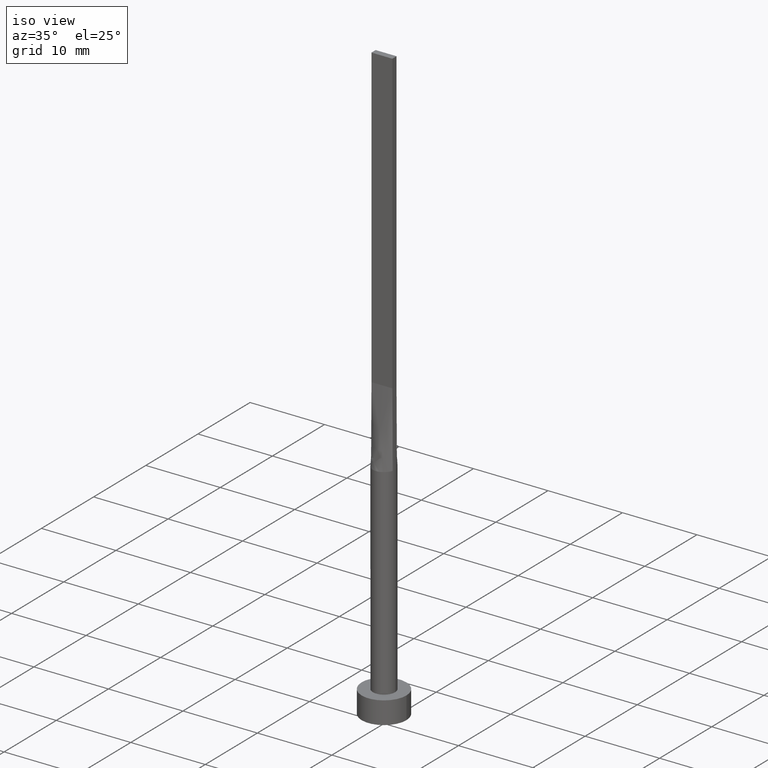
[diagram: clean part render]
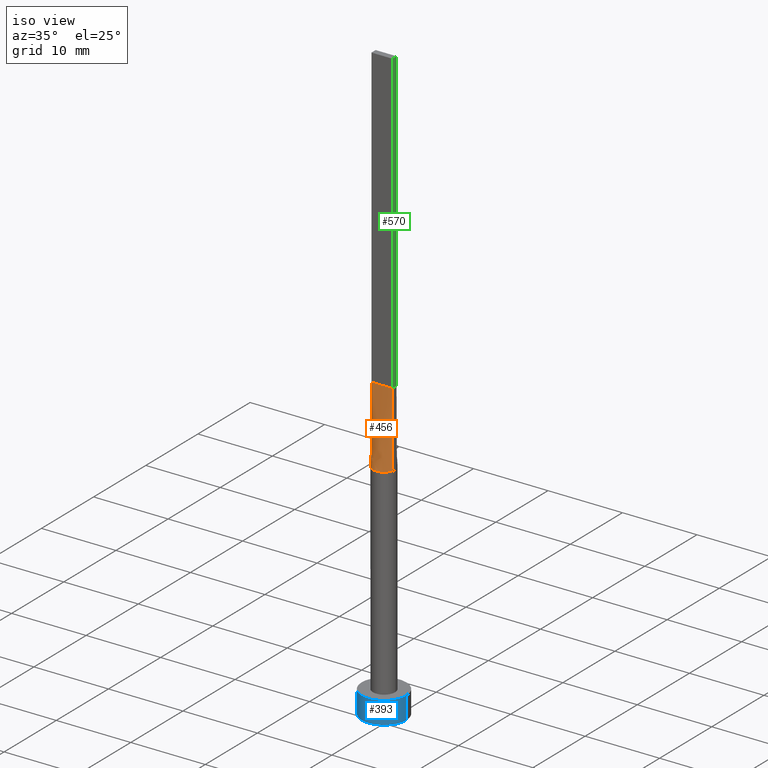
[diagram: same view with three faces highlighted in distinct colors, each labeled with its STEP entity id]
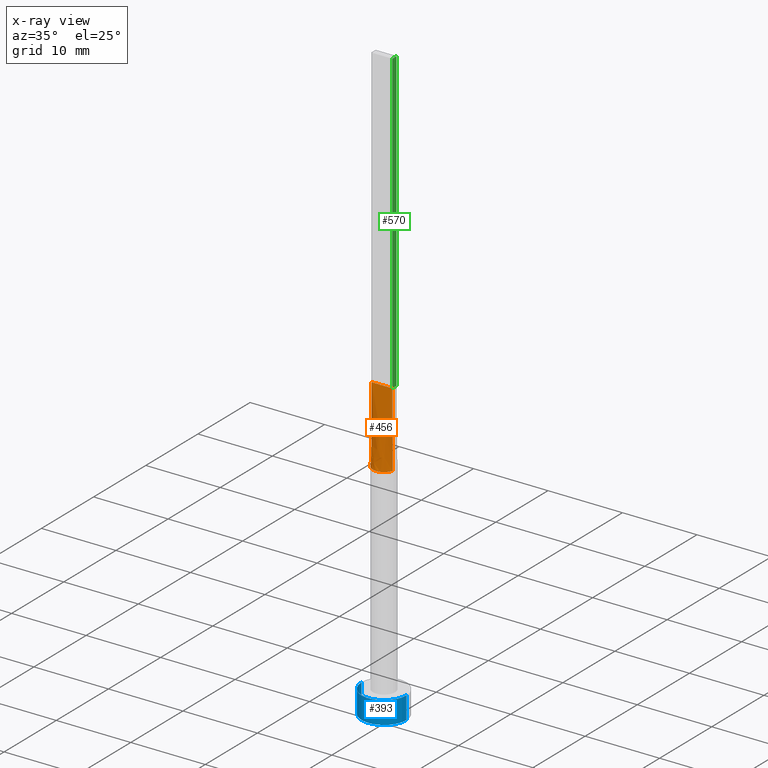
[diagram: x-ray of the same camera — body ghosted, the three highlighted faces saturated]
A machine part, iso view with three faces highlighted in distinct colors.
The next image is the same camera in x-ray (body ghosted, the three faces saturated) — at least one of them is partly hidden behind the body in this view.
Their STEP definitions:

[orange] entity #456 — the highlighted face is a freeform B-spline surface patch.
#5 = CARTESIAN_POINT ( 'NONE',  ( -1.409267053536706893, -0.5276477295819155255, 30.00000000000000000 ) ) ;
#9 = CARTESIAN_POINT ( 'NONE',  ( -1.283333333333333437, -0.3999999999999996336, 39.99999999999999289 ) ) ;
#16 = CARTESIAN_POINT ( 'NONE',  ( -1.442285921461235132, -0.4120816918460664113, 30.00000000000000000 ) ) ;
#28 = CARTESIAN_POINT ( 'NONE',  ( 1.409267053536706671, -0.5276477295819165247, 30.00000000000000000 ) ) ;
#45 = DIRECTION ( 'NONE',  ( 1.000000000000000000, -5.808225924029488744E-17, 0.000000000000000000 ) ) ;
#54 = CARTESIAN_POINT ( 'NONE',  ( 0.3767059690781844328, -1.463302066271691571, 30.00000000000000000 ) ) ;
#57 = CARTESIAN_POINT ( 'NONE',  ( 1.442393550978850802, -0.4121129214357137083, 30.00000000000000000 ) ) ;
#58 = CARTESIAN_POINT ( 'NONE',  ( -0.8665786268839192896, -1.235433898681764786, 30.00000000000000000 ) ) ;
#63 = B_SPLINE_SURFACE_WITH_KNOTS ( 'NONE', 3, 1, ( 
 ( #16, #372 ),
 ( #5, #9 ),
 ( #329, #279 ),
 ( #510, #91 ),
 ( #106, #360 ),
 ( #58, #541 ),
 ( #185, #146 ),
 ( #547, #143 ),
 ( #322, #501 ),
 ( #100, #460 ),
 ( #54, #504 ),
 ( #232, #189 ),
 ( #103, #464 ),
 ( #514, #336 ),
 ( #157, #154 ),
 ( #341, #381 ),
 ( #28, #69 ),
 ( #111, #333 ) ),
 .UNSPECIFIED., .F., .F., .F.,
 ( 4, 2, 2, 2, 2, 2, 2, 2, 4 ),
 ( 2, 2 ),
 ( 0.000000000000000000, 0.1250000000000000833, 0.2500000000000001665, 0.3750000000000001110, 0.5000000000000001110, 0.6250000000000001110, 0.7500000000000000000, 0.8750000000000000000, 1.000000000000000000 ),
 ( 0.000000000000000000, 1.000000000000000000 ),
 .UNSPECIFIED. ) ;
#69 = CARTESIAN_POINT ( 'NONE',  ( 1.283333333333332993, -0.3999999999999997446, 39.99999999999999289 ) ) ;
#71 = CARTESIAN_POINT ( 'NONE',  ( 1.399999999999999911, -0.3999999999999998002, 40.00000000000000000 ) ) ;
#75 = DIRECTION ( 'NONE',  ( 1.000000000000000000, 0.000000000000000000, 0.000000000000000000 ) ) ;
#91 = CARTESIAN_POINT ( 'NONE',  ( -0.9333333333333335702, -0.3999999999999996336, 39.99999999999999289 ) ) ;
#93 = AXIS2_PLACEMENT_3D ( 'NONE', #572, #479, #75 ) ;
#95 = CARTESIAN_POINT ( 'NONE',  ( -1.421142960730617633, -0.4060408459230329670, 35.00000000000000000 ) ) ;
#100 = CARTESIAN_POINT ( 'NONE',  ( 0.1885753531885892564, -1.499999999999999778, 30.00000000000000000 ) ) ;
#103 = CARTESIAN_POINT ( 'NONE',  ( 0.8665786268839185125, -1.235433898681766340, 30.00000000000001066 ) ) ;
#106 = CARTESIAN_POINT ( 'NONE',  ( -1.114527776139990323, -1.017390422009413209, 30.00000000000000000 ) ) ;
#111 = CARTESIAN_POINT ( 'NONE',  ( 1.442285921461234910, -0.4120816918460670220, 30.00000000000000000 ) ) ;
#122 = VECTOR ( 'NONE', #45, 1000.000000000000000 ) ;
#133 = ORIENTED_EDGE ( 'NONE', *, *, #561, .T. ) ;
#141 = EDGE_CURVE ( 'NONE', #285, #234, #256, .T. ) ;
#143 = CARTESIAN_POINT ( 'NONE',  ( -0.2333333333333344473, -0.3999999999999996336, 39.99999999999999289 ) ) ;
#146 = CARTESIAN_POINT ( 'NONE',  ( -0.4666666666666673957, -0.3999999999999996336, 39.99999999999999289 ) ) ;
#147 = VERTEX_POINT ( 'NONE', #478 ) ;
#151 = ORIENTED_EDGE ( 'NONE', *, *, #269, .T. ) ;
#154 = CARTESIAN_POINT ( 'NONE',  ( 0.9333333333333324600, -0.3999999999999997446, 39.99999999999999289 ) ) ;
#157 = CARTESIAN_POINT ( 'NONE',  ( 1.212111761082483197, -0.8950936653899579376, 30.00000000000000711 ) ) ;
#185 = CARTESIAN_POINT ( 'NONE',  ( -0.7158926189626813041, -1.330660769095146634, 29.99999999999999645 ) ) ;
#188 = CARTESIAN_POINT ( 'NONE',  ( -1.399999999999999911, -0.3999999999999996336, 40.00000000000000000 ) ) ;
#189 = CARTESIAN_POINT ( 'NONE',  ( 0.4666666666666655638, -0.3999999999999997446, 39.99999999999999289 ) ) ;
#232 = CARTESIAN_POINT ( 'NONE',  ( 0.7158926189626801939, -1.330660769095147744, 30.00000000000001066 ) ) ;
#234 = VERTEX_POINT ( 'NONE', #57 ) ;
#236 = LINE ( 'NONE', #188, #122 ) ;
#243 = LINE ( 'NONE', #477, #263 ) ;
#244 = VECTOR ( 'NONE', #371, 1000.000000000000000 ) ;
#256 = CIRCLE ( 'NONE', #93, 1.500000000000000222 ) ;
#263 = VECTOR ( 'NONE', #518, 1000.000000000000000 ) ;
#269 = EDGE_CURVE ( 'NONE', #147, #285, #535, .T. ) ;
#279 = CARTESIAN_POINT ( 'NONE',  ( -1.166666666666666741, -0.3999999999999996336, 39.99999999999999289 ) ) ;
#285 = VERTEX_POINT ( 'NONE', #402 ) ;
#291 = EDGE_CURVE ( 'NONE', #147, #369, #236, .T. ) ;
#322 = CARTESIAN_POINT ( 'NONE',  ( -0.1885753531885907275, -1.500000000000000000, 30.00000000000000000 ) ) ;
#329 = CARTESIAN_POINT ( 'NONE',  ( -1.359280768448767551, -0.6502025712814705205, 29.99999999999999289 ) ) ;
#333 = CARTESIAN_POINT ( 'NONE',  ( 1.399999999999999911, -0.3999999999999998002, 40.00000000000000000 ) ) ;
#336 = CARTESIAN_POINT ( 'NONE',  ( 0.8166666666666655416, -0.3999999999999997446, 39.99999999999999289 ) ) ;
#341 = CARTESIAN_POINT ( 'NONE',  ( 1.359280768448766663, -0.6502025712814719638, 30.00000000000001066 ) ) ;
#360 = CARTESIAN_POINT ( 'NONE',  ( -0.8166666666666668739, -0.3999999999999996336, 39.99999999999999289 ) ) ;
#369 = VERTEX_POINT ( 'NONE', #71 ) ;
#371 = DIRECTION ( 'NONE',  ( -0.004228551254826051417, -0.001208157501378827629, -0.9999903298081123104 ) ) ;
#372 = CARTESIAN_POINT ( 'NONE',  ( -1.399999999999999911, -0.3999999999999996336, 40.00000000000000000 ) ) ;
#381 = CARTESIAN_POINT ( 'NONE',  ( 1.166666666666666075, -0.3999999999999997446, 39.99999999999999289 ) ) ;
#402 = CARTESIAN_POINT ( 'NONE',  ( -1.442368678646663405, -0.4121057215347019853, 30.00000000000000000 ) ) ;
#452 = ORIENTED_EDGE ( 'NONE', *, *, #291, .F. ) ;
#456 = ADVANCED_FACE ( 'NONE', ( #469 ), #63, .T. ) ;
#460 = CARTESIAN_POINT ( 'NONE',  ( 0.1166666666666653640, -0.3999999999999996336, 39.99999999999999289 ) ) ;
#464 = CARTESIAN_POINT ( 'NONE',  ( 0.5833333333333321491, -0.3999999999999997446, 39.99999999999999289 ) ) ;
#469 = FACE_OUTER_BOUND ( 'NONE', #579, .T. ) ;
#477 = CARTESIAN_POINT ( 'NONE',  ( 1.421142960730617411, -0.4060408459230334111, 35.00000000000000000 ) ) ;
#478 = CARTESIAN_POINT ( 'NONE',  ( -1.399999999999999911, -0.3999999999999996336, 40.00000000000000000 ) ) ;
#479 = DIRECTION ( 'NONE',  ( 0.000000000000000000, 0.000000000000000000, 1.000000000000000000 ) ) ;
#488 = ORIENTED_EDGE ( 'NONE', *, *, #141, .T. ) ;
#501 = CARTESIAN_POINT ( 'NONE',  ( -0.1166666666666679592, -0.3999999999999996336, 39.99999999999999289 ) ) ;
#504 = CARTESIAN_POINT ( 'NONE',  ( 0.2333333333333321435, -0.3999999999999996891, 39.99999999999999289 ) ) ;
#510 = CARTESIAN_POINT ( 'NONE',  ( -1.212111761082483863, -0.8950936653899566053, 30.00000000000000355 ) ) ;
#514 = CARTESIAN_POINT ( 'NONE',  ( 1.114527776139989435, -1.017390422009414541, 30.00000000000001066 ) ) ;
#518 = DIRECTION ( 'NONE',  ( -0.004228551254826029733, 0.001208157501378870997, 0.9999903298081123104 ) ) ;
#535 = LINE ( 'NONE', #95, #244 ) ;
#541 = CARTESIAN_POINT ( 'NONE',  ( -0.5833333333333339255, -0.3999999999999996336, 39.99999999999999289 ) ) ;
#547 = CARTESIAN_POINT ( 'NONE',  ( -0.3767059690781856540, -1.463302066271690904, 30.00000000000000000 ) ) ;
#561 = EDGE_CURVE ( 'NONE', #234, #369, #243, .T. ) ;
#572 = CARTESIAN_POINT ( 'NONE',  ( 0.000000000000000000, 0.000000000000000000, 30.00000000000000000 ) ) ;
#579 = EDGE_LOOP ( 'NONE', ( #488, #133, #452, #151 ) ) ;

[blue] entity #393 — the highlighted cylindrical surface (edge-blend (fillet) strip) has radius 3 mm, axis along (-0, -0, -1).
#13 = CYLINDRICAL_SURFACE ( 'NONE', #414, 3.000000000000000444 ) ;
#23 = EDGE_CURVE ( 'NONE', #55, #326, #445, .T. ) ;
#39 = CARTESIAN_POINT ( 'NONE',  ( 3.000000000000000444, 3.673940397442060361E-16, 3.000000000000000000 ) ) ;
#41 = EDGE_CURVE ( 'NONE', #47, #55, #264, .T. ) ;
#47 = VERTEX_POINT ( 'NONE', #569 ) ;
#51 = DIRECTION ( 'NONE',  ( -0.000000000000000000, -0.000000000000000000, -1.000000000000000000 ) ) ;
#52 = EDGE_LOOP ( 'NONE', ( #273, #352, #548, #313 ) ) ;
#55 = VERTEX_POINT ( 'NONE', #248 ) ;
#84 = AXIS2_PLACEMENT_3D ( 'NONE', #305, #348, #475 ) ;
#136 = CARTESIAN_POINT ( 'NONE',  ( 0.000000000000000000, 0.000000000000000000, 3.000000000000000000 ) ) ;
#152 = CIRCLE ( 'NONE', #339, 3.000000000000000444 ) ;
#227 = CARTESIAN_POINT ( 'NONE',  ( 3.000000000000000444, 3.673940397442060361E-16, 0.000000000000000000 ) ) ;
#237 = DIRECTION ( 'NONE',  ( -0.000000000000000000, -0.000000000000000000, -1.000000000000000000 ) ) ;
#245 = VECTOR ( 'NONE', #51, 1000.000000000000000 ) ;
#248 = CARTESIAN_POINT ( 'NONE',  ( 3.000000000000000444, 3.673940397442060361E-16, 3.000000000000000000 ) ) ;
#264 = CIRCLE ( 'NONE', #84, 3.000000000000000444 ) ;
#273 = ORIENTED_EDGE ( 'NONE', *, *, #23, .F. ) ;
#283 = DIRECTION ( 'NONE',  ( -1.000000000000000000, 0.000000000000000000, 0.000000000000000000 ) ) ;
#289 = CARTESIAN_POINT ( 'NONE',  ( -3.000000000000000444, 0.000000000000000000, 3.000000000000000000 ) ) ;
#305 = CARTESIAN_POINT ( 'NONE',  ( 0.000000000000000000, 0.000000000000000000, 3.000000000000000000 ) ) ;
#312 = CARTESIAN_POINT ( 'NONE',  ( 0.000000000000000000, 0.000000000000000000, 0.000000000000000000 ) ) ;
#313 = ORIENTED_EDGE ( 'NONE', *, *, #423, .T. ) ;
#325 = DIRECTION ( 'NONE',  ( 0.000000000000000000, 0.000000000000000000, 1.000000000000000000 ) ) ;
#326 = VERTEX_POINT ( 'NONE', #227 ) ;
#339 = AXIS2_PLACEMENT_3D ( 'NONE', #312, #325, #406 ) ;
#348 = DIRECTION ( 'NONE',  ( 0.000000000000000000, 0.000000000000000000, 1.000000000000000000 ) ) ;
#352 = ORIENTED_EDGE ( 'NONE', *, *, #41, .F. ) ;
#368 = FACE_OUTER_BOUND ( 'NONE', #52, .T. ) ;
#393 = ADVANCED_FACE ( 'NONE', ( #368 ), #13, .T. ) ;
#406 = DIRECTION ( 'NONE',  ( 1.000000000000000000, 0.000000000000000000, 0.000000000000000000 ) ) ;
#414 = AXIS2_PLACEMENT_3D ( 'NONE', #136, #237, #283 ) ;
#423 = EDGE_CURVE ( 'NONE', #461, #326, #152, .T. ) ;
#435 = VECTOR ( 'NONE', #565, 1000.000000000000000 ) ;
#445 = LINE ( 'NONE', #39, #245 ) ;
#461 = VERTEX_POINT ( 'NONE', #522 ) ;
#475 = DIRECTION ( 'NONE',  ( 1.000000000000000000, 0.000000000000000000, 0.000000000000000000 ) ) ;
#522 = CARTESIAN_POINT ( 'NONE',  ( -3.000000000000000444, 0.000000000000000000, 0.000000000000000000 ) ) ;
#525 = EDGE_CURVE ( 'NONE', #47, #461, #557, .T. ) ;
#548 = ORIENTED_EDGE ( 'NONE', *, *, #525, .T. ) ;
#557 = LINE ( 'NONE', #289, #435 ) ;
#565 = DIRECTION ( 'NONE',  ( -0.000000000000000000, -0.000000000000000000, -1.000000000000000000 ) ) ;
#569 = CARTESIAN_POINT ( 'NONE',  ( -3.000000000000000444, 0.000000000000000000, 3.000000000000000000 ) ) ;

[green] entity #570 — the highlighted planar face has unit normal (-1, -0, 0).
#25 = LINE ( 'NONE', #61, #463 ) ;
#43 = VERTEX_POINT ( 'NONE', #574 ) ;
#46 = LINE ( 'NONE', #132, #215 ) ;
#50 = CARTESIAN_POINT ( 'NONE',  ( 1.399999999999999911, -0.3999999999999998002, 80.00000000000000000 ) ) ;
#56 = VECTOR ( 'NONE', #210, 1000.000000000000000 ) ;
#61 = CARTESIAN_POINT ( 'NONE',  ( 1.399999999999999689, 0.4000000000000002442, 40.00000000000000000 ) ) ;
#71 = CARTESIAN_POINT ( 'NONE',  ( 1.399999999999999911, -0.3999999999999998002, 40.00000000000000000 ) ) ;
#72 = DIRECTION ( 'NONE',  ( 2.710505431213761085E-16, -1.000000000000000000, 0.000000000000000000 ) ) ;
#83 = AXIS2_PLACEMENT_3D ( 'NONE', #295, #431, #72 ) ;
#97 = ORIENTED_EDGE ( 'NONE', *, *, #398, .F. ) ;
#109 = CARTESIAN_POINT ( 'NONE',  ( 1.399999999999999689, 0.4000000000000002442, 40.00000000000000000 ) ) ;
#114 = FACE_OUTER_BOUND ( 'NONE', #397, .T. ) ;
#116 = LINE ( 'NONE', #301, #56 ) ;
#128 = EDGE_CURVE ( 'NONE', #407, #369, #116, .T. ) ;
#132 = CARTESIAN_POINT ( 'NONE',  ( 1.399999999999999911, -0.3999999999999998002, 80.00000000000000000 ) ) ;
#138 = VECTOR ( 'NONE', #554, 1000.000000000000000 ) ;
#178 = ORIENTED_EDGE ( 'NONE', *, *, #467, .T. ) ;
#210 = DIRECTION ( 'NONE',  ( -0.000000000000000000, -0.000000000000000000, -1.000000000000000000 ) ) ;
#215 = VECTOR ( 'NONE', #410, 1000.000000000000000 ) ;
#240 = DIRECTION ( 'NONE',  ( -2.710505431213761085E-16, 1.000000000000000000, -0.000000000000000000 ) ) ;
#295 = CARTESIAN_POINT ( 'NONE',  ( 1.399999999999999911, -0.3999999999999998002, 80.00000000000000000 ) ) ;
#301 = CARTESIAN_POINT ( 'NONE',  ( 1.399999999999999911, -0.3999999999999998002, 80.00000000000000000 ) ) ;
#365 = LINE ( 'NONE', #455, #138 ) ;
#369 = VERTEX_POINT ( 'NONE', #71 ) ;
#373 = ORIENTED_EDGE ( 'NONE', *, *, #128, .T. ) ;
#385 = PLANE ( 'NONE',  #83 ) ;
#397 = EDGE_LOOP ( 'NONE', ( #178, #97, #411, #373 ) ) ;
#398 = EDGE_CURVE ( 'NONE', #43, #487, #365, .T. ) ;
#407 = VERTEX_POINT ( 'NONE', #50 ) ;
#410 = DIRECTION ( 'NONE',  ( -2.710505431213761085E-16, 1.000000000000000000, 0.000000000000000000 ) ) ;
#411 = ORIENTED_EDGE ( 'NONE', *, *, #439, .F. ) ;
#431 = DIRECTION ( 'NONE',  ( -1.000000000000000000, -2.710505431213761085E-16, 0.000000000000000000 ) ) ;
#439 = EDGE_CURVE ( 'NONE', #407, #43, #46, .T. ) ;
#455 = CARTESIAN_POINT ( 'NONE',  ( 1.399999999999999689, 0.4000000000000002442, 80.00000000000000000 ) ) ;
#463 = VECTOR ( 'NONE', #240, 1000.000000000000000 ) ;
#467 = EDGE_CURVE ( 'NONE', #369, #487, #25, .T. ) ;
#487 = VERTEX_POINT ( 'NONE', #109 ) ;
#554 = DIRECTION ( 'NONE',  ( -0.000000000000000000, -0.000000000000000000, -1.000000000000000000 ) ) ;
#570 = ADVANCED_FACE ( 'NONE', ( #114 ), #385, .F. ) ;
#574 = CARTESIAN_POINT ( 'NONE',  ( 1.399999999999999689, 0.4000000000000002442, 80.00000000000000000 ) ) ;